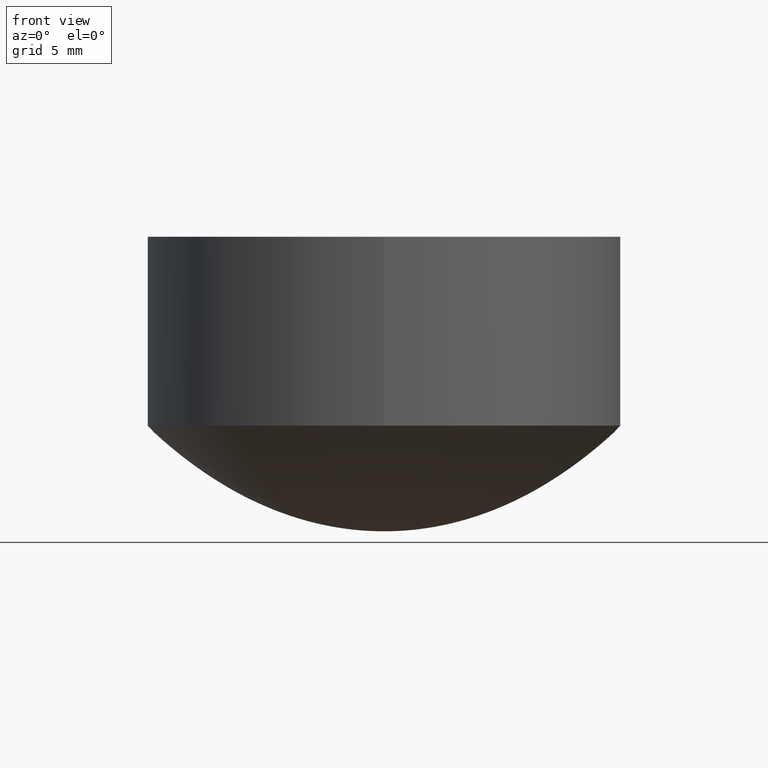
[diagram: clean part render]
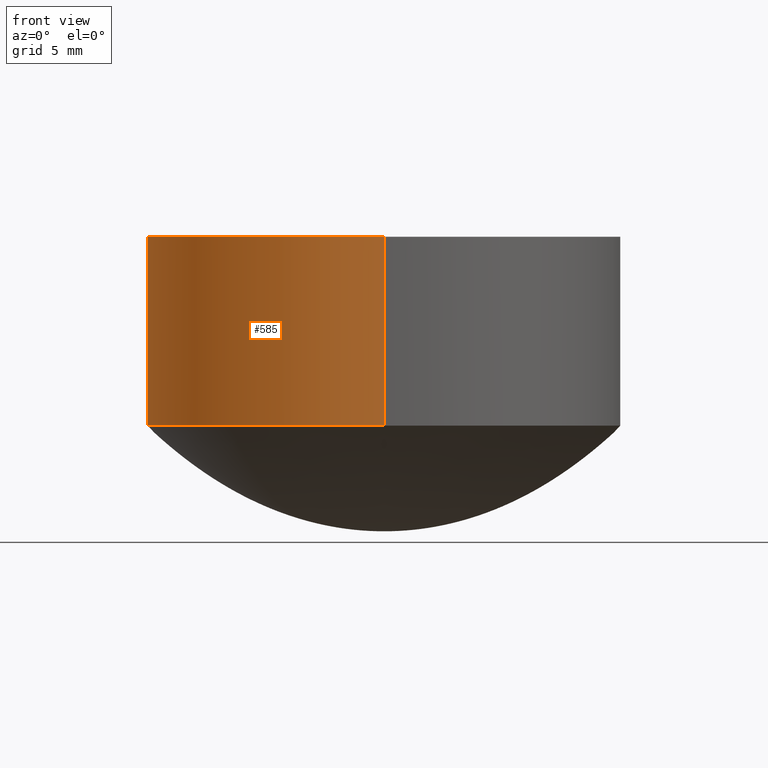
[diagram: same view with one face highlighted and labeled with its STEP entity id]
A machine part, front view. The second image highlights one B-rep face of the part: STEP entity #585.
In plain terms, the highlighted cylindrical surface (partial cylindrical patch) has radius 10 mm, axis along (0, 0, -1).
Its self-contained STEP definition (entity closure, byte-faithful):
#9 = DIRECTION ( 'NONE',  ( 0.000000000000000000, 0.000000000000000000, -1.000000000000000000 ) ) ;
#25 = CIRCLE ( 'NONE', #841, 10.00000000000000000 ) ;
#26 = VERTEX_POINT ( 'NONE', #572 ) ;
#30 = LINE ( 'NONE', #1041, #928 ) ;
#70 = CARTESIAN_POINT ( 'NONE',  ( 0.000000000000000000, 0.000000000000000000, 12.41999999999999993 ) ) ;
#88 = CARTESIAN_POINT ( 'NONE',  ( 0.000000000000000000, 10.00000000000000000, 12.41999999999999993 ) ) ;
#111 = AXIS2_PLACEMENT_3D ( 'NONE', #934, #940, #273 ) ;
#173 = CARTESIAN_POINT ( 'NONE',  ( 1.224646799147353256E-15, -10.00000000000000000, 4.453041101808560498 ) ) ;
#177 = LINE ( 'NONE', #952, #785 ) ;
#207 = ORIENTED_EDGE ( 'NONE', *, *, #1063, .T. ) ;
#250 = CIRCLE ( 'NONE', #1069, 10.00000000000000000 ) ;
#263 = FACE_OUTER_BOUND ( 'NONE', #866, .T. ) ;
#273 = DIRECTION ( 'NONE',  ( 0.000000000000000000, 1.000000000000000000, 0.000000000000000000 ) ) ;
#343 = DIRECTION ( 'NONE',  ( 0.000000000000000000, 0.000000000000000000, 1.000000000000000000 ) ) ;
#405 = DIRECTION ( 'NONE',  ( 0.000000000000000000, 0.000000000000000000, -1.000000000000000000 ) ) ;
#424 = CARTESIAN_POINT ( 'NONE',  ( 0.000000000000000000, 0.000000000000000000, 4.453041101808560498 ) ) ;
#449 = VERTEX_POINT ( 'NONE', #88 ) ;
#502 = EDGE_CURVE ( 'NONE', #782, #612, #25, .T. ) ;
#535 = ORIENTED_EDGE ( 'NONE', *, *, #753, .T. ) ;
#572 = CARTESIAN_POINT ( 'NONE',  ( 1.224646799147353256E-15, -10.00000000000000000, 12.41999999999999993 ) ) ;
#585 = ADVANCED_FACE ( 'NONE', ( #263 ), #589, .T. ) ;
#589 = CYLINDRICAL_SURFACE ( 'NONE', #111, 10.00000000000000000 ) ;
#612 = VERTEX_POINT ( 'NONE', #173 ) ;
#674 = ORIENTED_EDGE ( 'NONE', *, *, #703, .F. ) ;
#699 = DIRECTION ( 'NONE',  ( 0.000000000000000000, 0.000000000000000000, -1.000000000000000000 ) ) ;
#703 = EDGE_CURVE ( 'NONE', #26, #612, #177, .T. ) ;
#706 = ORIENTED_EDGE ( 'NONE', *, *, #502, .T. ) ;
#747 = DIRECTION ( 'NONE',  ( 0.000000000000000000, 1.000000000000000000, 0.000000000000000000 ) ) ;
#753 = EDGE_CURVE ( 'NONE', #449, #782, #30, .T. ) ;
#782 = VERTEX_POINT ( 'NONE', #856 ) ;
#785 = VECTOR ( 'NONE', #699, 1000.000000000000000 ) ;
#840 = DIRECTION ( 'NONE',  ( 0.000000000000000000, 1.000000000000000000, 0.000000000000000000 ) ) ;
#841 = AXIS2_PLACEMENT_3D ( 'NONE', #424, #343, #840 ) ;
#856 = CARTESIAN_POINT ( 'NONE',  ( 0.000000000000000000, 10.00000000000000000, 4.453041101808560498 ) ) ;
#866 = EDGE_LOOP ( 'NONE', ( #674, #207, #535, #706 ) ) ;
#928 = VECTOR ( 'NONE', #9, 1000.000000000000000 ) ;
#934 = CARTESIAN_POINT ( 'NONE',  ( 0.000000000000000000, 0.000000000000000000, 13.04100000000000037 ) ) ;
#940 = DIRECTION ( 'NONE',  ( 0.000000000000000000, 0.000000000000000000, -1.000000000000000000 ) ) ;
#952 = CARTESIAN_POINT ( 'NONE',  ( 1.224646799147353256E-15, -10.00000000000000000, 13.04100000000000037 ) ) ;
#1041 = CARTESIAN_POINT ( 'NONE',  ( 0.000000000000000000, 10.00000000000000000, 13.04100000000000037 ) ) ;
#1063 = EDGE_CURVE ( 'NONE', #26, #449, #250, .T. ) ;
#1069 = AXIS2_PLACEMENT_3D ( 'NONE', #70, #405, #747 ) ;